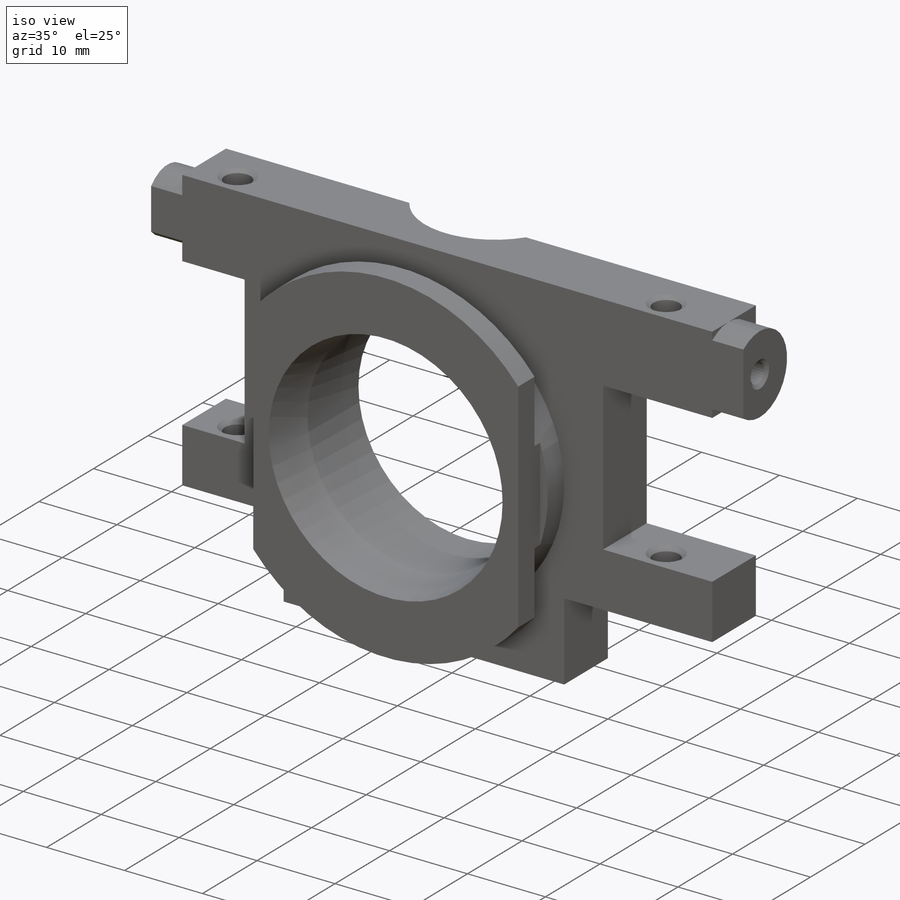
[diagram: iso view]
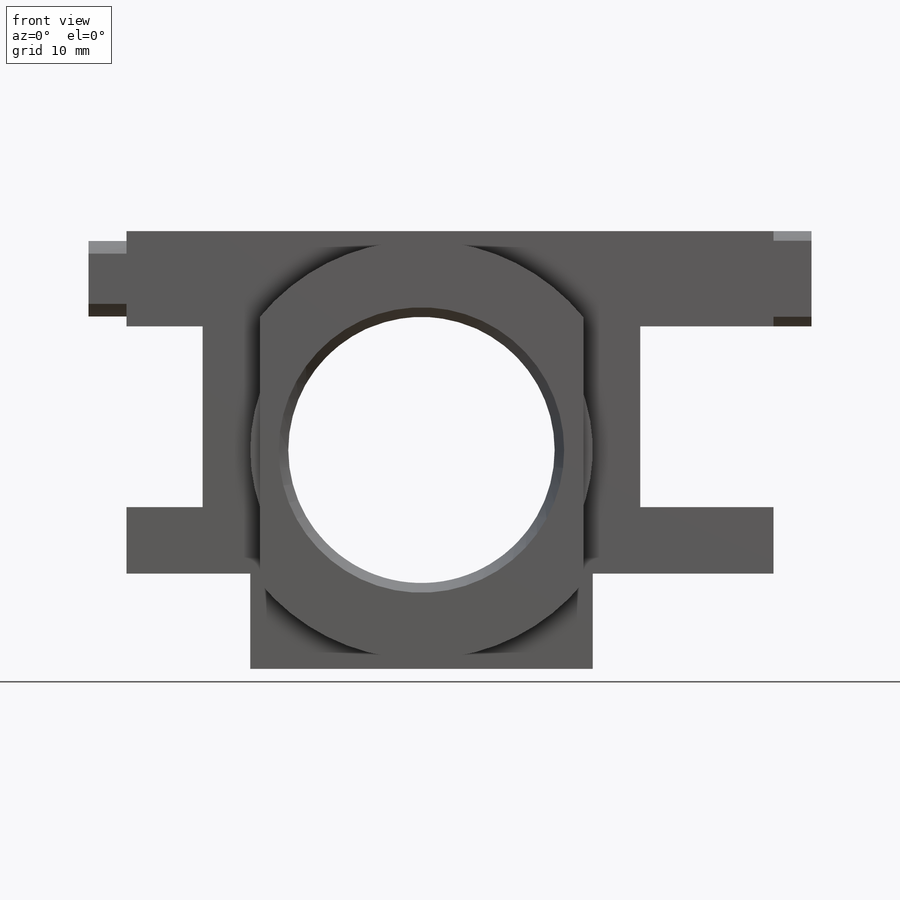
[diagram: front view]
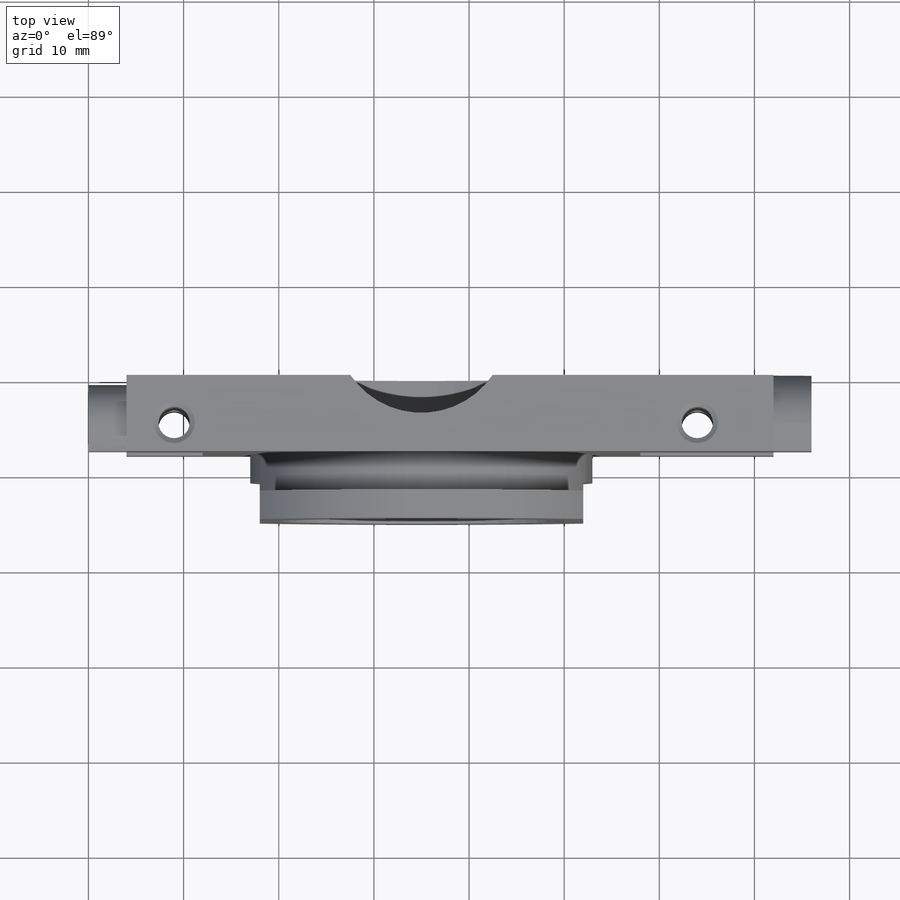
[diagram: top view]
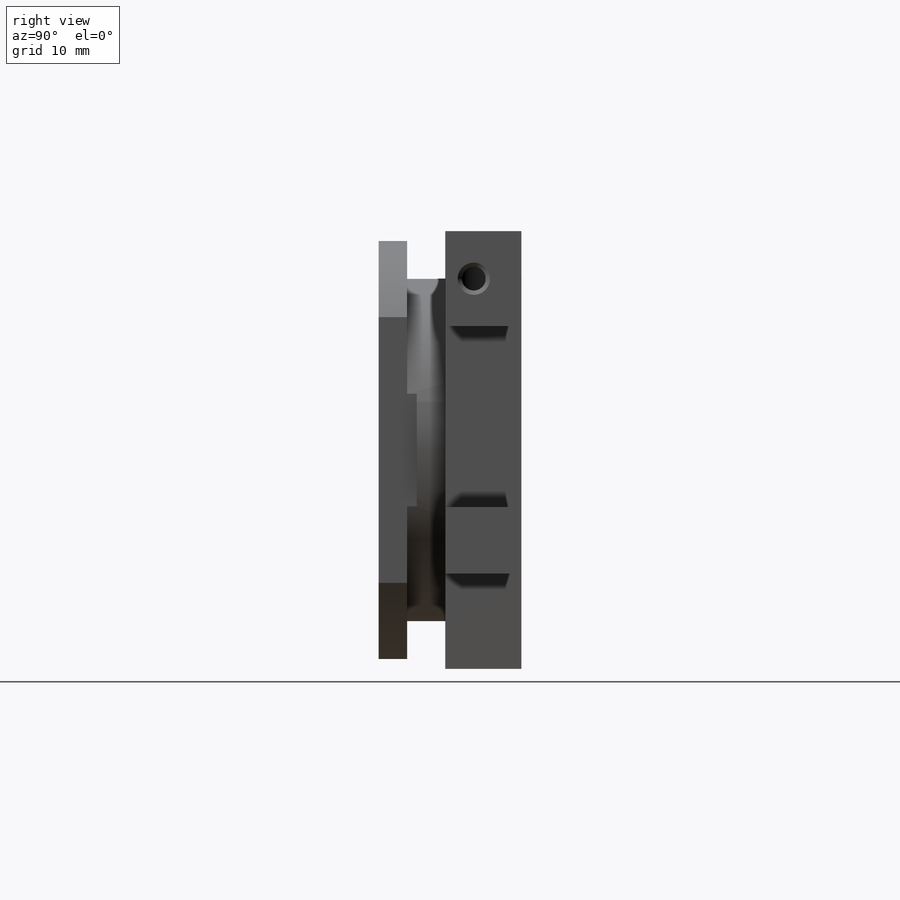
[diagram: right view]
SOLIDWORKS PART (.sldprt)
format: sldprt  version: not decoded by parser v0  size: 504,320 bytes
history: native  units: mm
features: sketch x15, plane x5, cut_extrude x5, hole x4, cut_revolve x2, thread x2, material x1, extrude x1 (+13 scaffold rows collapsed)
feature tree (48):
  scaffold x13  (default folders/planes/origin — collapsed)
  material  "1060 Сплав"
  plane  "Спереди"
  plane  "Сверху"
  plane  "Справа"
  sketch  "Эскиз1"  dims[D1=76.0mm D2=46.0mm]
  extrude  "Бобышка-Вытянуть1"  Depth=15mm
  sketch  "Эскиз2"  dims[c1.D3=28.0mm c1.D4=28.5mm c1.D5=9.6956mm c1.D6=~9.44565mm c1.D7=~9.44565mm c1.D8=12.0mm c1.D1=17.0mm c1.D2=35.0mm c2.D4=13.0mm c2.D5=19.0mm c2.D6=19.0mm c2.D7=13.0mm c2.D1=23.0mm]
  cut_extrude  "Вырез-Вытянуть1"  [1 undecoded]
  plane  "Плоскость1"
  sketch  "Эскиз3"  dims[D1=36.0mm D2=36.0mm D3=17.0mm D4=12.0mm D5=10.0mm D6=19.0mm D7=18.0mm D8=4.0mm D9=4.0mm]
  cut_extrude  "Вырез-Вытянуть3"  [1 undecoded]
  sketch  "Эскиз4"  dims[c1.D1=9.0mm c1.D3=7.0mm c1.D2=4.0mm c2.D3=~1.393238mm]
  cut_extrude  "Вырез-Вытянуть4"  [1 undecoded]
  sketch  "Эскиз5"  dims[c1.D1=1.0mm c1.D2=22.0mm c2.D1=22.0mm c2.D3=4.0mm c2.D4=1.0mm c3.D1=50.0mm c3.D3=8.0mm c3.D4=4.5mm c3.D5=3.0mm c3.D6=~9.01069mm c4.D6=10.0deg c4.D7=15.0mm c4.D4=18.0mm]
  cut_revolve  "Вырез-Повернуть1"  Angle=360deg
  hole  "Отверстие обработанное метчиком M41"  [1 undecoded]
  sketch  "Эскиз7"  dims[D1=55.0mm D2=12.0mm D3=5.0mm]
  sketch  "Эскиз6"  dims[hole-wizard template sketch: 46 standard entries collapsed; hole parameters kept: c15.Диаметр резьбы=3.3mm c15.Глубина проходного сверла=10.0mm c15.Диаметр передней зенковки=4.35mm c15.D4=~3.666174mm c15.Угол передней зенковки=110.0deg c15.Диаметр задней зенковки=4.35mm c15.D6=~9.919017mm c15.Угол задней зенковки=90.0deg]
  hole  "Отверстие обработанное метчиком M42"  [1 undecoded]
  sketch  "Эскиз9"  dims[c1.D1=55.0mm c1.D2=12.0mm c1.D3=5.0mm c2.D2=11.0mm]
  sketch  "Эскиз8"  dims[hole-wizard template sketch: 46 standard entries collapsed; hole parameters kept: c15.Диаметр резьбы=3.3mm c15.Глубина проходного сверла=7.0mm c15.Диаметр передней зенковки=4.35mm c15.D4=~3.666174mm c15.Угол передней зенковки=110.0deg c15.Диаметр задней зенковки=4.35mm c15.D6=~9.919017mm c15.Угол задней зенковки=90.0deg]
  hole  "Отверстие обработанное метчиком M31"  [1 undecoded]
  sketch  "Эскиз11"  dims[D1=5.0mm D2=5.0mm]
  sketch  "Эскиз10"  dims[hole-wizard template sketch: 55 standard entries collapsed; hole parameters kept: c17.Глубина проходного сверла=7.35mm c17.Диаметр передней зенковки=3.4mm c17.D4=~3.666174mm c17.Угол передней зенковки=110.0deg]
  thread  "Отверстие резьбы1"  Diameter=3mm  [1 undecoded]
  hole  "Отверстие обработанное метчиком M32"  [1 undecoded]
  sketch  "Эскиз13"
  sketch  "Эскиз12"  dims[hole-wizard template sketch: 55 standard entries collapsed; hole parameters kept: c17.Глубина проходного сверла=10.35mm c17.Диаметр передней зенковки=3.4mm c17.D4=~3.666174mm c17.Угол передней зенковки=110.0deg]
  thread  "Отверстие резьбы2"  Diameter=3mm  [1 undecoded]
  cut_extrude  "Ось2"  [1 undecoded]
  plane  "Плоскость2"
  sketch  "Эскиз15"  dims[D1=4.0mm D2=5.0mm]
  cut_revolve  "Вырез-Повернуть2"  Angle=360deg
  sketch  "Эскиз16"  dims[D1=34.0mm]
  cut_extrude  "Вырез-Вытянуть5"  Depth=4mm
decode coverage: 20 of 29 modeling features carry decoded parameters
note: ~ marks probable driven/reference dimensions
note: 10 parameter values undecoded
summary: no parameter record found for 8 features
note: suppression state not decoded; provenance and decode notes live in map.json
